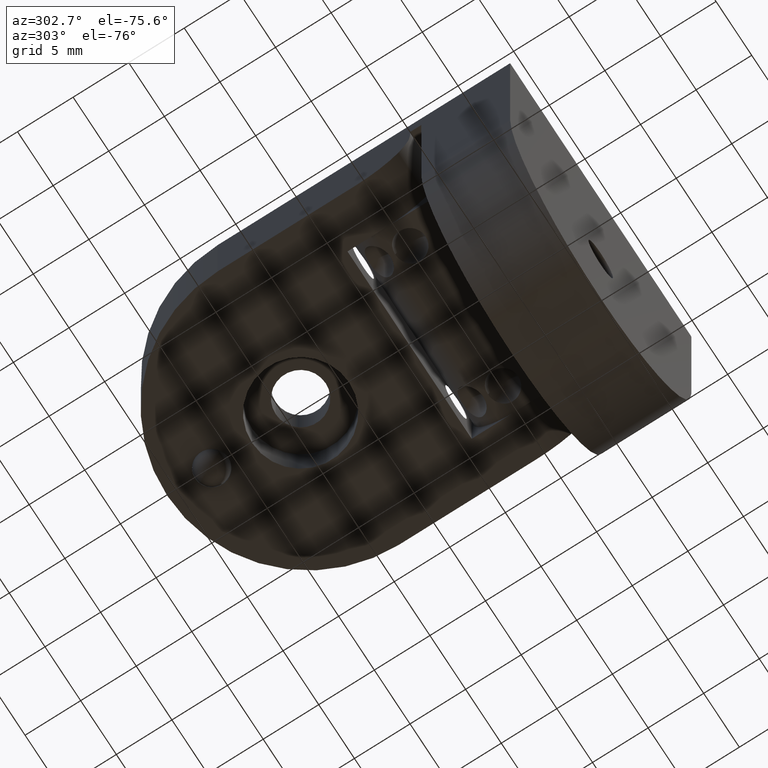
[diagram: clean part render]
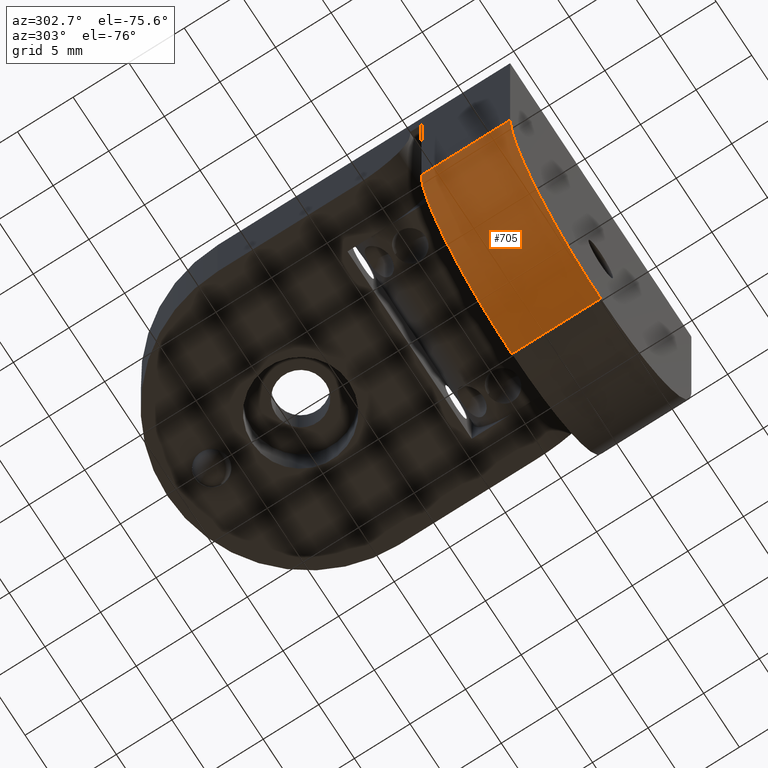
[diagram: same view with one face highlighted and labeled with its STEP entity id]
A machine part, auxiliary view. The second image highlights one B-rep face of the part: STEP entity #705.
In plain terms, the highlighted cylindrical surface (partial cylindrical patch) has radius 12.7 mm, axis along (0, -1, 0).
Its self-contained STEP definition (entity closure, byte-faithful):
#21 = DIRECTION ( 'NONE',  ( 0.0000000000000000000, 1.000000000000000000, -0.0000000000000000000 ) ) ;
#65 = FACE_OUTER_BOUND ( 'NONE', #2744, .T. ) ;
#179 = CARTESIAN_POINT ( 'NONE',  ( 0.0000000000000000000, 0.0000000000000000000, -30.00000000000000400 ) ) ;
#333 = CARTESIAN_POINT ( 'NONE',  ( -12.70000000000000100, 0.0000000000000000000, -17.30000000000000800 ) ) ;
#545 = DIRECTION ( 'NONE',  ( 0.0000000000000000000, 0.0000000000000000000, -1.000000000000000000 ) ) ;
#583 = DIRECTION ( 'NONE',  ( 8.881784197001252300E-016, 0.0000000000000000000, 1.000000000000000000 ) ) ;
#656 = DIRECTION ( 'NONE',  ( 0.0000000000000000000, -1.000000000000000000, 0.0000000000000000000 ) ) ;
#705 = ADVANCED_FACE ( 'NONE', ( #65 ), #1026, .T. ) ;
#761 = DIRECTION ( 'NONE',  ( -0.0000000000000000000, -1.000000000000000000, 0.0000000000000000000 ) ) ;
#798 = VERTEX_POINT ( 'NONE', #1514 ) ;
#938 = DIRECTION ( 'NONE',  ( 0.0000000000000000000, -1.000000000000000000, 0.0000000000000000000 ) ) ;
#1026 = CYLINDRICAL_SURFACE ( 'NONE', #2453, 12.69999999999999900 ) ;
#1032 = VECTOR ( 'NONE', #656, 1000.000000000000000 ) ;
#1104 = LINE ( 'NONE', #2775, #1032 ) ;
#1265 = ORIENTED_EDGE ( 'NONE', *, *, #1635, .F. ) ;
#1340 = AXIS2_PLACEMENT_3D ( 'NONE', #2003, #761, #583 ) ;
#1361 = ORIENTED_EDGE ( 'NONE', *, *, #1495, .F. ) ;
#1397 = LINE ( 'NONE', #2588, #2032 ) ;
#1431 = CARTESIAN_POINT ( 'NONE',  ( -1.202741610010585500E-015, 8.000000000000000000, -17.30000000000000400 ) ) ;
#1476 = DIRECTION ( 'NONE',  ( 0.0000000000000000000, -1.000000000000000000, 0.0000000000000000000 ) ) ;
#1479 = VERTEX_POINT ( 'NONE', #179 ) ;
#1481 = VERTEX_POINT ( 'NONE', #333 ) ;
#1495 = EDGE_CURVE ( 'NONE', #1760, #1481, #1104, .T. ) ;
#1514 = CARTESIAN_POINT ( 'NONE',  ( 0.0000000000000000000, 8.000000000000000000, -30.00000000000000400 ) ) ;
#1540 = ORIENTED_EDGE ( 'NONE', *, *, #2581, .T. ) ;
#1635 = EDGE_CURVE ( 'NONE', #1481, #1479, #2996, .T. ) ;
#1676 = DIRECTION ( 'NONE',  ( 0.0000000000000000000, 0.0000000000000000000, 1.000000000000000000 ) ) ;
#1722 = AXIS2_PLACEMENT_3D ( 'NONE', #1431, #21, #1676 ) ;
#1760 = VERTEX_POINT ( 'NONE', #2096 ) ;
#2003 = CARTESIAN_POINT ( 'NONE',  ( -1.202741610010585500E-015, 0.0000000000000000000, -17.30000000000000400 ) ) ;
#2032 = VECTOR ( 'NONE', #938, 1000.000000000000000 ) ;
#2039 = EDGE_CURVE ( 'NONE', #798, #1760, #2352, .T. ) ;
#2096 = CARTESIAN_POINT ( 'NONE',  ( -12.70000000000000100, 8.000000000000000000, -17.30000000000000800 ) ) ;
#2352 = CIRCLE ( 'NONE', #1722, 12.69999999999999900 ) ;
#2413 = CARTESIAN_POINT ( 'NONE',  ( -1.202741610010585500E-015, 8.000000000000000000, -17.30000000000000400 ) ) ;
#2453 = AXIS2_PLACEMENT_3D ( 'NONE', #2413, #1476, #545 ) ;
#2490 = ORIENTED_EDGE ( 'NONE', *, *, #2039, .F. ) ;
#2581 = EDGE_CURVE ( 'NONE', #798, #1479, #1397, .T. ) ;
#2588 = CARTESIAN_POINT ( 'NONE',  ( 0.0000000000000000000, 8.000000000000000000, -30.00000000000000400 ) ) ;
#2744 = EDGE_LOOP ( 'NONE', ( #2490, #1540, #1265, #1361 ) ) ;
#2775 = CARTESIAN_POINT ( 'NONE',  ( -12.70000000000000100, 8.000000000000000000, -17.30000000000000800 ) ) ;
#2996 = CIRCLE ( 'NONE', #1340, 12.69999999999999900 ) ;